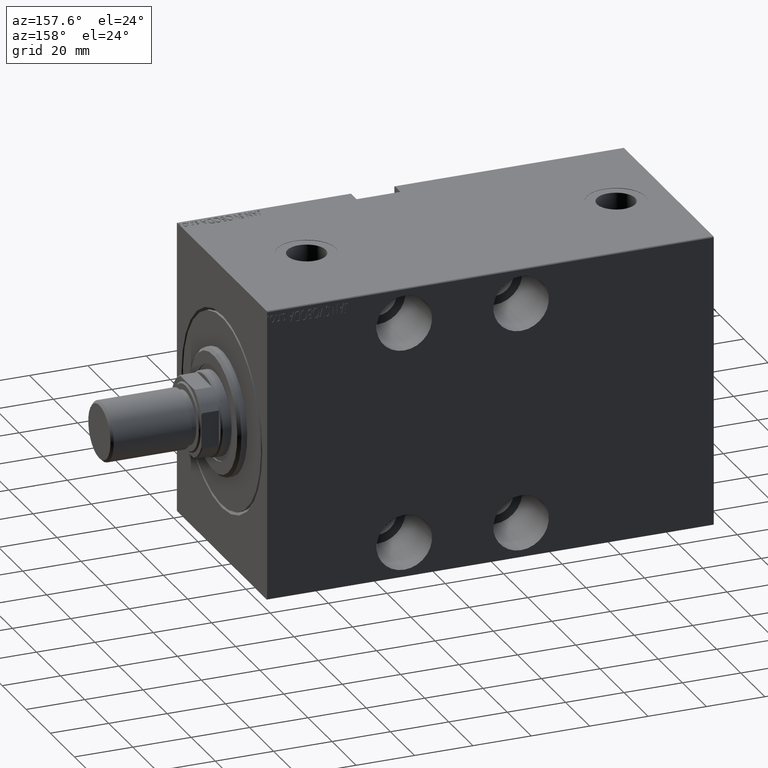
[diagram: clean part render]
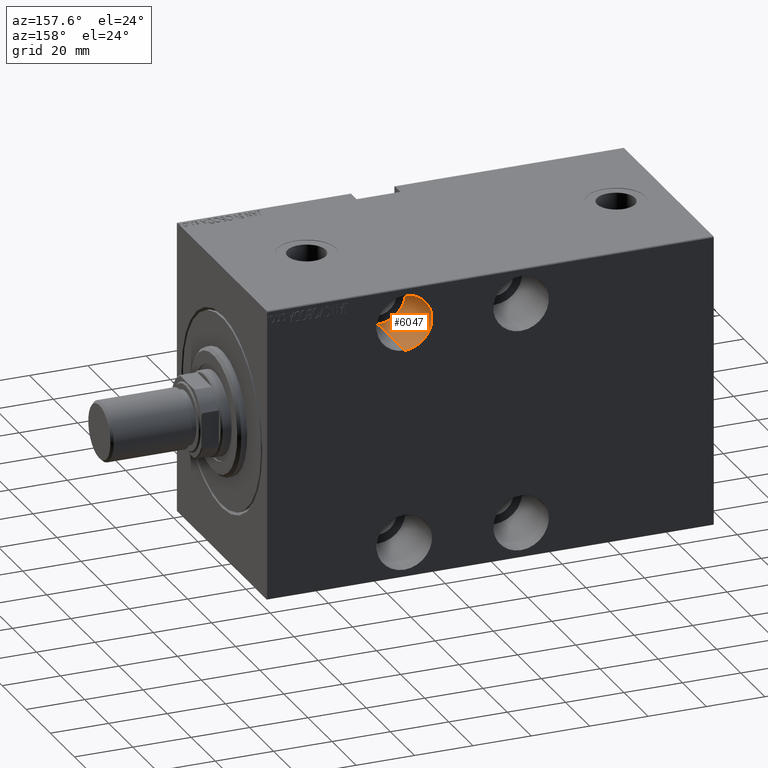
[diagram: same view with one face highlighted and labeled with its STEP entity id]
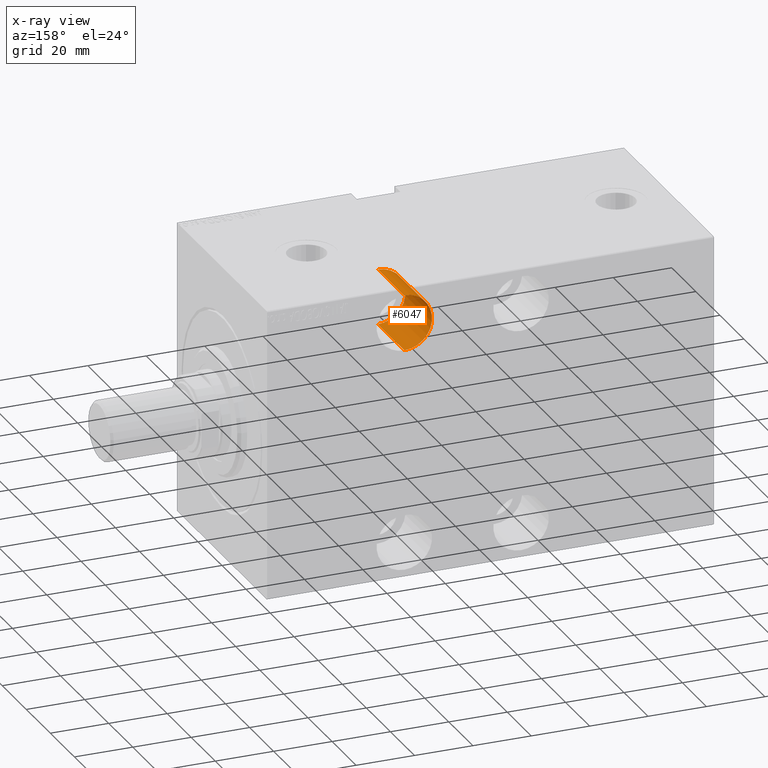
[diagram: x-ray of the same camera — body ghosted, the highlighted face saturated]
A machine part, auxiliary view. The second image highlights one B-rep face of the part: STEP entity #6047.
The next image is the same camera in x-ray: the body ghosted, the highlighted face saturated — about 0% of this face is hidden behind the body in this view.
In plain terms, the highlighted cylindrical surface (edge-blend (fillet) strip) has radius 9.5 mm, axis along (-0, 1, 0).
Its self-contained STEP definition (entity closure, byte-faithful):
#1893 = EDGE_CURVE ( 'NONE', #15109, #21407, #19385, .T. ) ;
#3249 = AXIS2_PLACEMENT_3D ( 'NONE', #7373, #24210, #20169 ) ;
#6047 = ADVANCED_FACE ( 'NONE', ( #29088 ), #12040, .F. ) ;
#6093 = CIRCLE ( 'NONE', #3249, 9.500000000000001776 ) ;
#7373 = CARTESIAN_POINT ( 'NONE',  ( 47.00000000000000711, -37.49999999999999289, 38.00000000000001421 ) ) ;
#8090 = AXIS2_PLACEMENT_3D ( 'NONE', #8902, #25729, #22355 ) ;
#8902 = CARTESIAN_POINT ( 'NONE',  ( 47.00000000000000711, -15.49999999999999289, 38.00000000000001421 ) ) ;
#10664 = EDGE_CURVE ( 'NONE', #25549, #41762, #40526, .T. ) ;
#12040 = CYLINDRICAL_SURFACE ( 'NONE', #8090, 9.500000000000001776 ) ;
#12871 = CARTESIAN_POINT ( 'NONE',  ( 47.00000000000000711, -15.49999999999999289, 28.50000000000001066 ) ) ;
#12961 = ORIENTED_EDGE ( 'NONE', *, *, #10664, .F. ) ;
#15109 = VERTEX_POINT ( 'NONE', #23924 ) ;
#15366 = CIRCLE ( 'NONE', #30422, 9.500000000000001776 ) ;
#16033 = CARTESIAN_POINT ( 'NONE',  ( 47.00000000000000711, -15.49999999999999289, 47.50000000000001421 ) ) ;
#17328 = EDGE_LOOP ( 'NONE', ( #12961, #34256, #19530, #43628 ) ) ;
#19385 = LINE ( 'NONE', #12871, #34620 ) ;
#19530 = ORIENTED_EDGE ( 'NONE', *, *, #1893, .T. ) ;
#19833 = DIRECTION ( 'NONE',  ( -0.000000000000000000, -1.000000000000000000, -0.000000000000000000 ) ) ;
#19915 = CARTESIAN_POINT ( 'NONE',  ( 47.00000000000000711, -37.49999999999999289, 28.50000000000001066 ) ) ;
#20169 = DIRECTION ( 'NONE',  ( 0.000000000000000000, 0.000000000000000000, -1.000000000000000000 ) ) ;
#21407 = VERTEX_POINT ( 'NONE', #19915 ) ;
#21833 = EDGE_CURVE ( 'NONE', #15109, #25549, #15366, .T. ) ;
#22355 = DIRECTION ( 'NONE',  ( 0.000000000000000000, 0.000000000000000000, -1.000000000000000000 ) ) ;
#23480 = EDGE_CURVE ( 'NONE', #21407, #41762, #6093, .T. ) ;
#23491 = CARTESIAN_POINT ( 'NONE',  ( 47.00000000000000711, -15.49999999999999289, 47.50000000000001421 ) ) ;
#23924 = CARTESIAN_POINT ( 'NONE',  ( 47.00000000000000711, -15.49999999999999289, 28.50000000000001066 ) ) ;
#24210 = DIRECTION ( 'NONE',  ( 0.000000000000000000, -1.000000000000000000, 0.000000000000000000 ) ) ;
#25549 = VERTEX_POINT ( 'NONE', #16033 ) ;
#25729 = DIRECTION ( 'NONE',  ( -0.000000000000000000, -1.000000000000000000, -0.000000000000000000 ) ) ;
#28152 = CARTESIAN_POINT ( 'NONE',  ( 47.00000000000000711, -15.49999999999999289, 38.00000000000001421 ) ) ;
#29088 = FACE_OUTER_BOUND ( 'NONE', #17328, .T. ) ;
#30422 = AXIS2_PLACEMENT_3D ( 'NONE', #28152, #34444, #38457 ) ;
#34256 = ORIENTED_EDGE ( 'NONE', *, *, #21833, .F. ) ;
#34444 = DIRECTION ( 'NONE',  ( 0.000000000000000000, -1.000000000000000000, 0.000000000000000000 ) ) ;
#34620 = VECTOR ( 'NONE', #19833, 1000.000000000000000 ) ;
#36265 = CARTESIAN_POINT ( 'NONE',  ( 47.00000000000000711, -37.49999999999999289, 47.50000000000001421 ) ) ;
#37156 = DIRECTION ( 'NONE',  ( -0.000000000000000000, -1.000000000000000000, -0.000000000000000000 ) ) ;
#38320 = VECTOR ( 'NONE', #37156, 1000.000000000000000 ) ;
#38457 = DIRECTION ( 'NONE',  ( 0.000000000000000000, 0.000000000000000000, -1.000000000000000000 ) ) ;
#40526 = LINE ( 'NONE', #23491, #38320 ) ;
#41762 = VERTEX_POINT ( 'NONE', #36265 ) ;
#43628 = ORIENTED_EDGE ( 'NONE', *, *, #23480, .T. ) ;